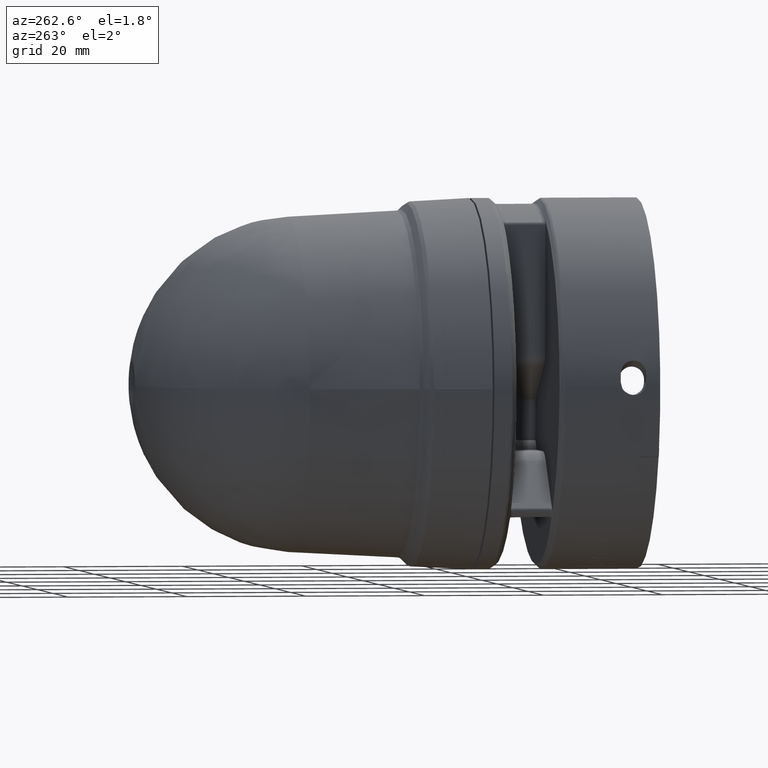
[diagram: clean part render]
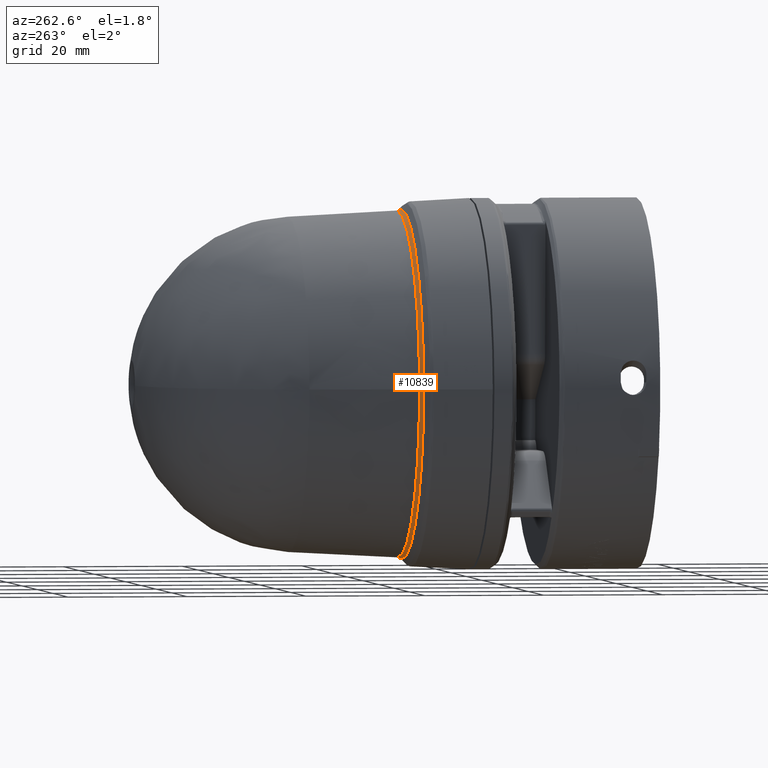
[diagram: same view with one face highlighted and labeled with its STEP entity id]
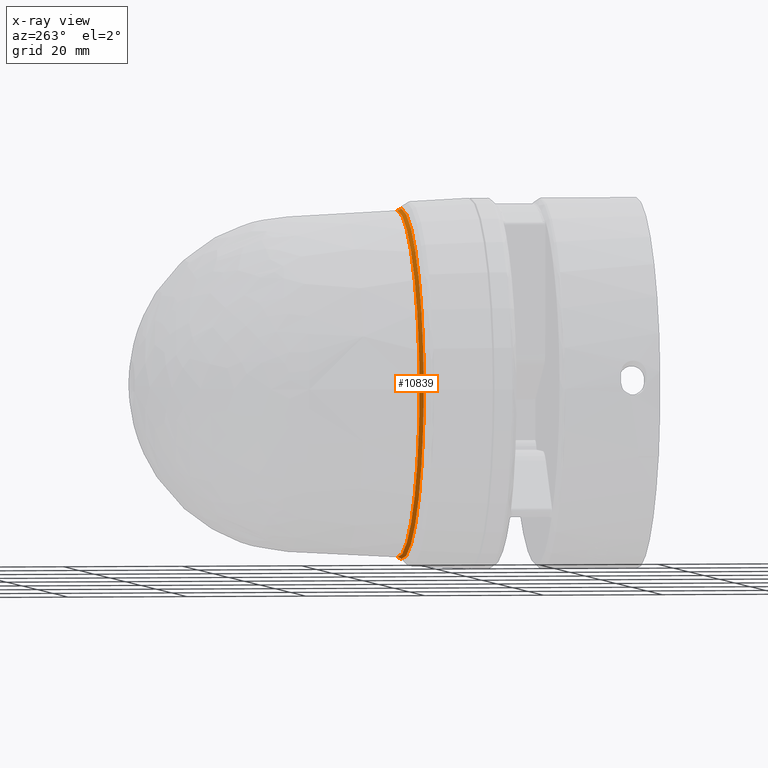
[diagram: x-ray of the same camera — body ghosted, the highlighted face saturated]
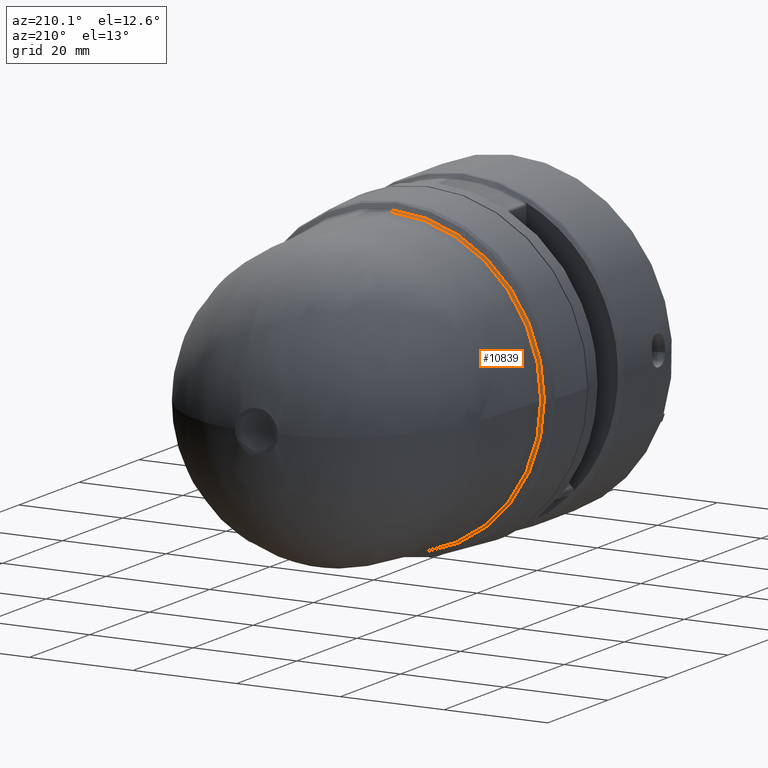
[diagram: same view with one face highlighted and labeled with its STEP entity id]
A machine part, auxiliary view. The second image highlights one B-rep face of the part: STEP entity #10839.
The next image is the same camera in x-ray: the body ghosted, the highlighted face saturated — about 0% of this face is hidden behind the body in this view.
A second angle (auxiliary view) of the same face is appended — the face is thin or edge-on in the first view.
In plain terms, the highlighted face is a freeform B-spline surface patch.
Its self-contained STEP definition (entity closure, byte-faithful):
#358 = CARTESIAN_POINT ( 'NONE',  ( 9.040678903537799584E-16, 0.5611374315539922053, -1.140409979403665730 ) ) ;
#531 = CARTESIAN_POINT ( 'NONE',  ( 8.814085180706991828E-16, 0.5423182376662737392, -1.144928068119118292 ) ) ;
#589 = CARTESIAN_POINT ( 'NONE',  ( 2.173117631902069595E-15, 0.5513091454864138541, 1.140925058050626273 ) ) ;
#705 = EDGE_CURVE ( 'NONE', #3987, #1751, #8264, .T. ) ;
#898 = VERTEX_POINT ( 'NONE', #3424 ) ;
#1230 = DIRECTION ( 'NONE',  ( -1.000000000000000000, 1.796622295711217246E-15, 4.996003610813231056E-16 ) ) ;
#1317 = CARTESIAN_POINT ( 'NONE',  ( -2.281850116101250325, 0.5513091454864164076, 1.140925058050627605 ) ) ;
#1384 = CARTESIAN_POINT ( 'NONE',  ( 1.586288308604467090E-15, 0.5353590526192048005, -7.925102117578728831E-31 ) ) ;
#1433 = ORIENTED_EDGE ( 'NONE', *, *, #5947, .F. ) ;
#1551 = CARTESIAN_POINT ( 'NONE',  ( -2.280819958807330128, 0.5611374315539946478, -1.140409979403664398 ) ) ;
#1671 = DIRECTION ( 'NONE',  ( -1.000000000000000000, 1.796622295711217246E-15, 2.275957200481573274E-15 ) ) ;
#1751 = VERTEX_POINT ( 'NONE', #10255 ) ;
#1923 = DIRECTION ( 'NONE',  ( -1.000000000000000000, 1.054711873393900094E-15, 4.996003610813220209E-16 ) ) ;
#2184 = CARTESIAN_POINT ( 'NONE',  ( 2.205041860820663924E-15, 0.5631979022722204409, 1.179726102819200761 ) ) ;
#2430 = CARTESIAN_POINT ( 'NONE',  ( 1.586288308604467090E-15, 0.5353590526192048005, -7.925102117578728831E-31 ) ) ;
#3283 = DIRECTION ( 'NONE',  ( -1.054711873393900094E-15, -1.000000000000000000, 5.269344327843500065E-31 ) ) ;
#3305 = DIRECTION ( 'NONE',  ( 1.054711873393900094E-15, 1.000000000000000000, -5.269344327843500065E-31 ) ) ;
#3424 = CARTESIAN_POINT ( 'NONE',  ( -1.151887253166186564, 0.5353590526192060217, 1.427937509627729973E-16 ) ) ;
#3704 = CARTESIAN_POINT ( 'NONE',  ( 8.817839073607848737E-16, 0.5631979022722204409, -1.179726102819200761 ) ) ;
#3822 = EDGE_LOOP ( 'NONE', ( #10154, #9316, #1433, #10650, #10729, #7205 ) ) ;
#3987 = VERTEX_POINT ( 'NONE', #11795 ) ;
#4168 = AXIS2_PLACEMENT_3D ( 'NONE', #3704, #4543, #8460 ) ;
#4232 = CARTESIAN_POINT ( 'NONE',  ( 2.165634719947208232E-15, 0.5423182376662737392, 1.144928068119118292 ) ) ;
#4431 = AXIS2_PLACEMENT_3D ( 'NONE', #2430, #8311, #8076 ) ;
#4467 = CARTESIAN_POINT ( 'NONE',  ( -2.303774506332373573, 0.5353590526192071319, 1.151887253166189229 ) ) ;
#4472 = AXIS2_PLACEMENT_3D ( 'NONE', #7687, #10357, #1671 ) ;
#4543 = DIRECTION ( 'NONE',  ( 1.000000000000000000, -1.054711873393900094E-15, -6.220650409960573663E-16 ) ) ;
#4943 = EDGE_CURVE ( 'NONE', #7022, #3987, #12150, .T. ) ;
#5067 = DIRECTION ( 'NONE',  ( 4.996003610813223167E-16, 0.0000000000000000000, 1.000000000000000000 ) ) ;
#5224 = CARTESIAN_POINT ( 'NONE',  ( 1.613477070943838226E-15, 0.5611374315539923163, -8.060937272399769753E-31 ) ) ;
#5246 = CARTESIAN_POINT ( 'NONE',  ( -2.289856136238233919, 0.5423182376662761817, 1.144928068119119624 ) ) ;
#5358 = EDGE_CURVE ( 'NONE', #1751, #12369, #12123, .T. ) ;
#5442 = CIRCLE ( 'NONE', #4431, 1.151887253166187897 ) ;
#5947 = EDGE_CURVE ( 'NONE', #898, #7403, #7880, .T. ) ;
#6051 = DIRECTION ( 'NONE',  ( 4.996003610813178794E-16, 0.0000000000000000000, 1.000000000000000000 ) ) ;
#6208 = EDGE_CURVE ( 'NONE', #12369, #898, #5442, .T. ) ;
#6252 = CARTESIAN_POINT ( 'NONE',  ( 8.697395172408059409E-16, 0.5353590526192048005, -1.151887253166188119 ) ) ;
#6265 = CARTESIAN_POINT ( 'NONE',  ( 8.869037037972938864E-16, 0.5611374315539923163, -1.140409979403666618 ) ) ;
#6370 = CARTESIAN_POINT ( 'NONE',  ( 2.161771596211266860E-15, 0.5353590526192048005, 1.151887253166188119 ) ) ;
#7022 = VERTEX_POINT ( 'NONE', #6265 ) ;
#7138 = EDGE_CURVE ( 'NONE', #7022, #7403, #11428, .T. ) ;
#7205 = ORIENTED_EDGE ( 'NONE', *, *, #705, .F. ) ;
#7247 = CARTESIAN_POINT ( 'NONE',  ( -2.281850116101251658, 0.5513091454864164076, -1.140925058050625163 ) ) ;
#7403 = VERTEX_POINT ( 'NONE', #8982 ) ;
#7687 = CARTESIAN_POINT ( 'NONE',  ( 1.613477070943838226E-15, 0.5611374315539923163, -8.060937272399769753E-31 ) ) ;
#7750 = CARTESIAN_POINT ( 'NONE',  ( 2.161771596211266860E-15, 0.5353590526192048005, 1.151887253166187897 ) ) ;
#7880 = CIRCLE ( 'NONE', #11303, 1.151887253166187897 ) ;
#8076 = DIRECTION ( 'NONE',  ( 4.996003610813223167E-16, 0.0000000000000000000, 1.000000000000000000 ) ) ;
#8213 = CARTESIAN_POINT ( 'NONE',  ( 2.183226308434649158E-15, 0.5611374315539922053, 1.140409979403665730 ) ) ;
#8264 = CIRCLE ( 'NONE', #8878, 1.140409979403666618 ) ;
#8311 = DIRECTION ( 'NONE',  ( -1.054711873393900094E-15, -1.000000000000000000, 5.269344327843500065E-31 ) ) ;
#8460 = DIRECTION ( 'NONE',  ( -6.220650409960538164E-16, 0.0000000000000000000, -1.000000000000000000 ) ) ;
#8878 = AXIS2_PLACEMENT_3D ( 'NONE', #5224, #3305, #1230 ) ;
#8982 = CARTESIAN_POINT ( 'NONE',  ( 8.697395172408059409E-16, 0.5353590526192048005, -1.151887253166187897 ) ) ;
#9052 = CARTESIAN_POINT ( 'NONE',  ( 8.933814679235552622E-16, 0.5513091454864138541, -1.140925058050626273 ) ) ;
#9224 = CARTESIAN_POINT ( 'NONE',  ( -2.289856136238235251, 0.5423182376662761817, -1.144928068119116960 ) ) ;
#9265 =( BOUNDED_SURFACE ( )  B_SPLINE_SURFACE ( 3, 3, ( 
 ( #8213, #12005, #1551, #358 ),
 ( #589, #1317, #7247, #9052 ),
 ( #4232, #5246, #9224, #531 ),
 ( #6370, #4467, #9279, #6252 ) ),
 .UNSPECIFIED., .F., .F., .F. ) 
 B_SPLINE_SURFACE_WITH_KNOTS ( ( 4, 4 ),
 ( 4, 4 ),
 ( 0.0000000000000000000, 1.000000000000000000 ),
 ( 0.0000000000000000000, 1.000000000000000000 ),
 .UNSPECIFIED. ) 
 GEOMETRIC_REPRESENTATION_ITEM ( )  RATIONAL_B_SPLINE_SURFACE ( (
 ( 1.000000000000000000, 0.3333333333333334259, 0.3333333333333334259, 1.000000000000000000),
 ( 0.9557202843314677176, 0.3185734281104893317, 0.3185734281104893317, 0.9557202843314677176),
 ( 0.9557202843314677176, 0.3185734281104893317, 0.3185734281104893317, 0.9557202843314677176),
 ( 1.000000000000000000, 0.3333333333333334259, 0.3333333333333334259, 1.000000000000000000) ) ) 
 REPRESENTATION_ITEM ( '' )  SURFACE ( )  );
#9279 = CARTESIAN_POINT ( 'NONE',  ( -2.303774506332374905, 0.5353590526192071319, -1.151887253166186786 ) ) ;
#9316 = ORIENTED_EDGE ( 'NONE', *, *, #7138, .T. ) ;
#10154 = ORIENTED_EDGE ( 'NONE', *, *, #4943, .F. ) ;
#10255 = CARTESIAN_POINT ( 'NONE',  ( 2.172498952322958995E-15, 0.5611374315539923163, 1.140409979403666618 ) ) ;
#10357 = DIRECTION ( 'NONE',  ( 1.054711873393900094E-15, 1.000000000000000000, -5.269344327843500065E-31 ) ) ;
#10650 = ORIENTED_EDGE ( 'NONE', *, *, #6208, .F. ) ;
#10729 = ORIENTED_EDGE ( 'NONE', *, *, #5358, .F. ) ;
#10839 = ADVANCED_FACE ( 'NONE', ( #11184 ), #9265, .F. ) ;
#11153 = AXIS2_PLACEMENT_3D ( 'NONE', #2184, #1923, #6051 ) ;
#11184 = FACE_OUTER_BOUND ( 'NONE', #3822, .T. ) ;
#11303 = AXIS2_PLACEMENT_3D ( 'NONE', #1384, #3283, #5067 ) ;
#11428 = CIRCLE ( 'NONE', #4168, 0.03937007874015820141 ) ;
#11795 = CARTESIAN_POINT ( 'NONE',  ( -1.140409979403665064, 0.5611374315539935376, 1.396599430992392007E-16 ) ) ;
#12005 = CARTESIAN_POINT ( 'NONE',  ( -2.280819958807328796, 0.5611374315539946478, 1.140409979403666840 ) ) ;
#12123 = CIRCLE ( 'NONE', #11153, 0.03937007874015820141 ) ;
#12150 = CIRCLE ( 'NONE', #4472, 1.140409979403666618 ) ;
#12369 = VERTEX_POINT ( 'NONE', #7750 ) ;